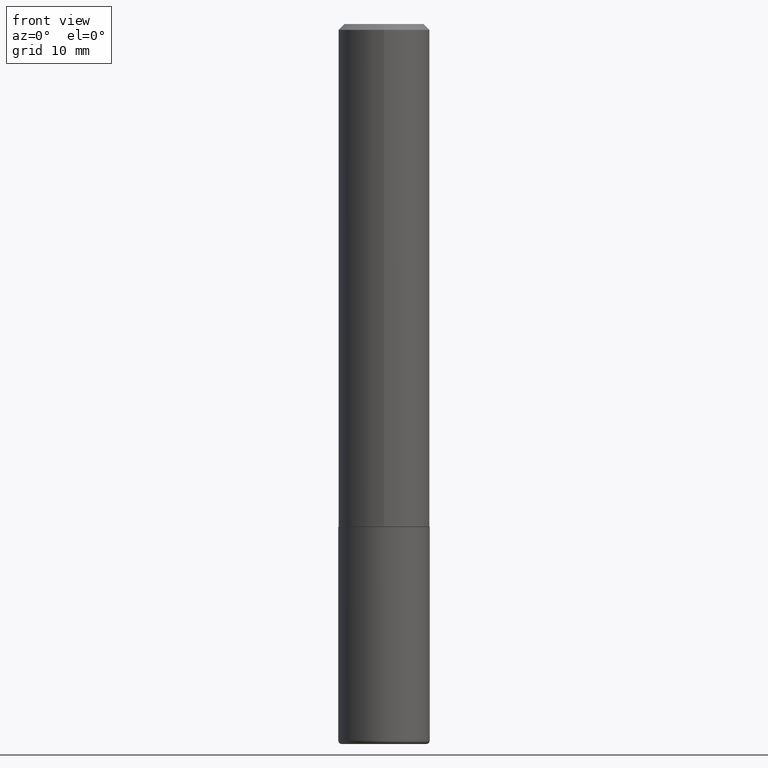
[diagram: clean part render]
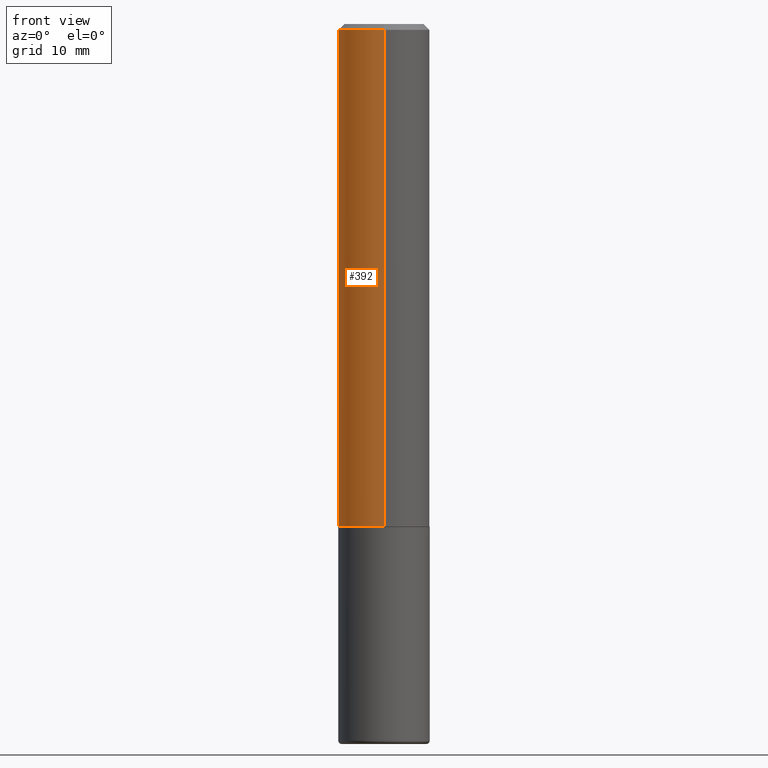
[diagram: same view with one face highlighted and labeled with its STEP entity id]
A machine part, front view. The second image highlights one B-rep face of the part: STEP entity #392.
In plain terms, the highlighted cylindrical surface (partial cylindrical patch) has radius 4.0005 mm, axis along (-0, 0, 1).
Its self-contained STEP definition (entity closure, byte-faithful):
#5 = AXIS2_PLACEMENT_3D ( 'NONE', #219, #50, #149 ) ;
#9 = CIRCLE ( 'NONE', #118, 0.1575000000000001954 ) ;
#10 = AXIS2_PLACEMENT_3D ( 'NONE', #314, #346, #23 ) ;
#23 = DIRECTION ( 'NONE',  ( -6.982962677686264344E-15, -1.000000000000000000, 3.496114991891764787E-15 ) ) ;
#35 = DIRECTION ( 'NONE',  ( -6.982962677686265922E-15, -1.000000000000000000, 3.469013325287948955E-15 ) ) ;
#48 = CIRCLE ( 'NONE', #10, 0.1575000000000000289 ) ;
#50 = DIRECTION ( 'NONE',  ( -2.450700573907887962E-29, 3.483989149690439338E-15, 1.000000000000000000 ) ) ;
#64 = ORIENTED_EDGE ( 'NONE', *, *, #166, .T. ) ;
#68 = CARTESIAN_POINT ( 'NONE',  ( 1.119104808822180283E-15, 0.1574999999999941447, -1.731300000000000727 ) ) ;
#96 = VECTOR ( 'NONE', #123, 39.37007874015748143 ) ;
#97 = LINE ( 'NONE', #157, #196 ) ;
#118 = AXIS2_PLACEMENT_3D ( 'NONE', #162, #127, #35 ) ;
#121 = LINE ( 'NONE', #322, #96 ) ;
#122 = VERTEX_POINT ( 'NONE', #168 ) ;
#123 = DIRECTION ( 'NONE',  ( -2.450700573907887682E-29, 3.483989149690438944E-15, 1.000000000000000000 ) ) ;
#124 = DIRECTION ( 'NONE',  ( -2.450700573907887682E-29, 3.483989149690438944E-15, 1.000000000000000000 ) ) ;
#127 = DIRECTION ( 'NONE',  ( -2.450700573907887962E-29, 3.483989149690439338E-15, 1.000000000000000000 ) ) ;
#135 = VERTEX_POINT ( 'NONE', #289 ) ;
#142 = EDGE_CURVE ( 'NONE', #122, #369, #97, .T. ) ;
#149 = DIRECTION ( 'NONE',  ( -6.982962677686265922E-15, -1.000000000000000000, 3.483989149690439733E-15 ) ) ;
#157 = CARTESIAN_POINT ( 'NONE',  ( -1.099816621735587480E-15, -0.1575000000000000844, 5.487282910762445666E-16 ) ) ;
#162 = CARTESIAN_POINT ( 'NONE',  ( 4.242897903606727500E-29, -6.031830414859058130E-15, -1.731300000000000283 ) ) ;
#166 = EDGE_CURVE ( 'NONE', #176, #122, #9, .T. ) ;
#168 = CARTESIAN_POINT ( 'NONE',  ( -1.099816621735545671E-15, -0.1575000000000062461, -1.731299999999999617 ) ) ;
#176 = VERTEX_POINT ( 'NONE', #68 ) ;
#196 = VECTOR ( 'NONE', #124, 39.37007874015748143 ) ;
#219 = CARTESIAN_POINT ( 'NONE',  ( 0.000000000000000000, 0.000000000000000000, 0.000000000000000000 ) ) ;
#230 = EDGE_CURVE ( 'NONE', #176, #135, #121, .T. ) ;
#242 = ORIENTED_EDGE ( 'NONE', *, *, #142, .T. ) ;
#250 = EDGE_LOOP ( 'NONE', ( #339, #64, #242, #395 ) ) ;
#289 = CARTESIAN_POINT ( 'NONE',  ( 1.099816621735587480E-15, 0.1574999999999999456, -0.02000000000000061798 ) ) ;
#307 = FACE_OUTER_BOUND ( 'NONE', #250, .T. ) ;
#314 = CARTESIAN_POINT ( 'NONE',  ( 4.901401147815792845E-31, -6.967978299380902441E-17, -0.02000000000000006981 ) ) ;
#322 = CARTESIAN_POINT ( 'NONE',  ( 1.119104808822158195E-15, 0.1575000000000000844, -5.487282910762445666E-16 ) ) ;
#339 = ORIENTED_EDGE ( 'NONE', *, *, #230, .F. ) ;
#346 = DIRECTION ( 'NONE',  ( -2.450700573907887962E-29, 3.483989149690439338E-15, 1.000000000000000000 ) ) ;
#367 = CYLINDRICAL_SURFACE ( 'NONE', #5, 0.1575000000000000844 ) ;
#368 = EDGE_CURVE ( 'NONE', #135, #369, #48, .T. ) ;
#369 = VERTEX_POINT ( 'NONE', #410 ) ;
#392 = ADVANCED_FACE ( 'NONE', ( #307 ), #367, .T. ) ;
#395 = ORIENTED_EDGE ( 'NONE', *, *, #368, .F. ) ;
#410 = CARTESIAN_POINT ( 'NONE',  ( -1.080528434649015779E-15, -0.1575000000000000844, -0.01999999999999951816 ) ) ;